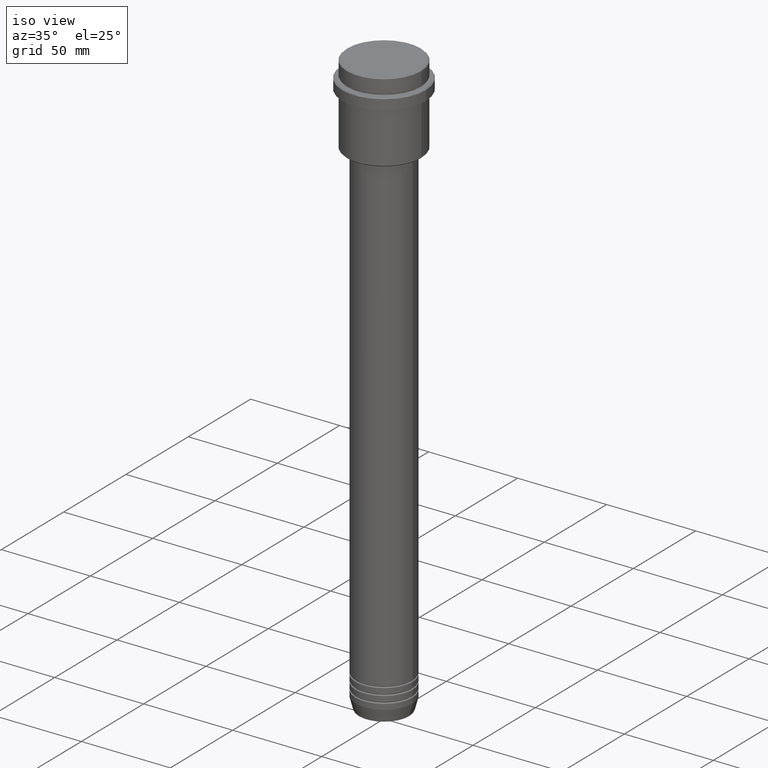
[diagram: clean part render]
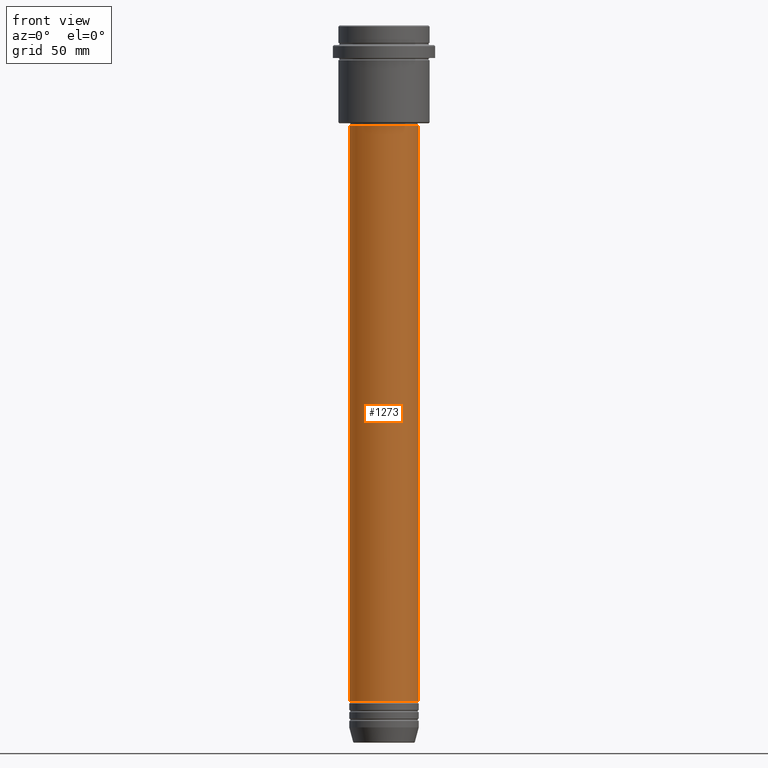
[diagram: tour spotlight — one face highlighted and labeled with its STEP entity id]
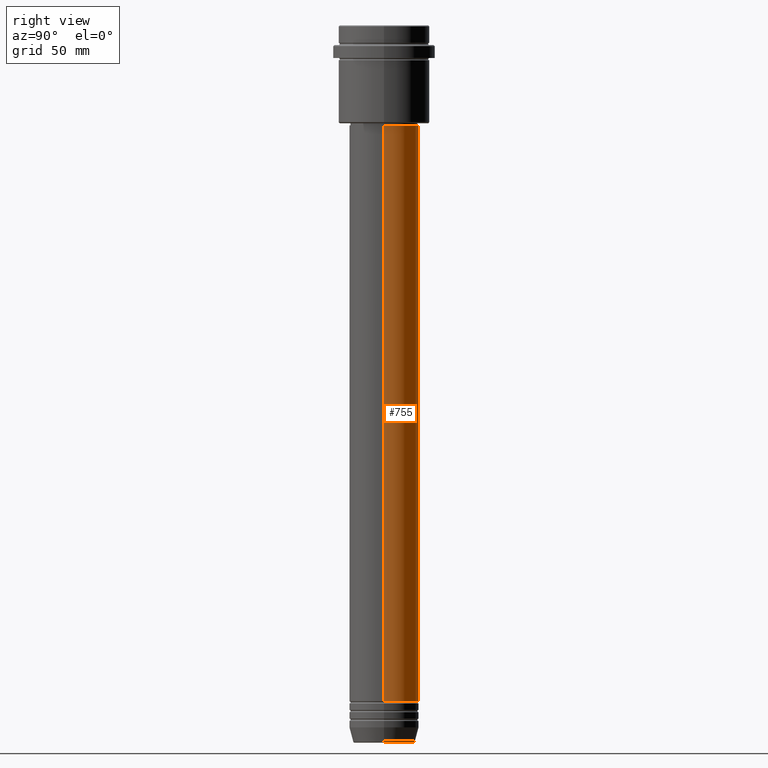
[diagram: tour spotlight — one face highlighted and labeled with its STEP entity id]
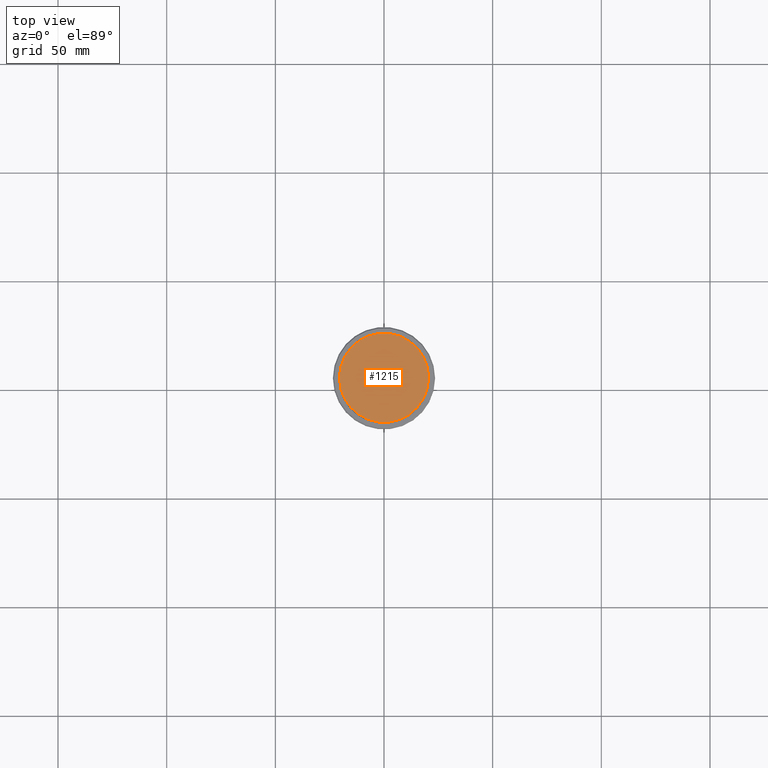
[diagram: tour spotlight — one face highlighted and labeled with its STEP entity id]
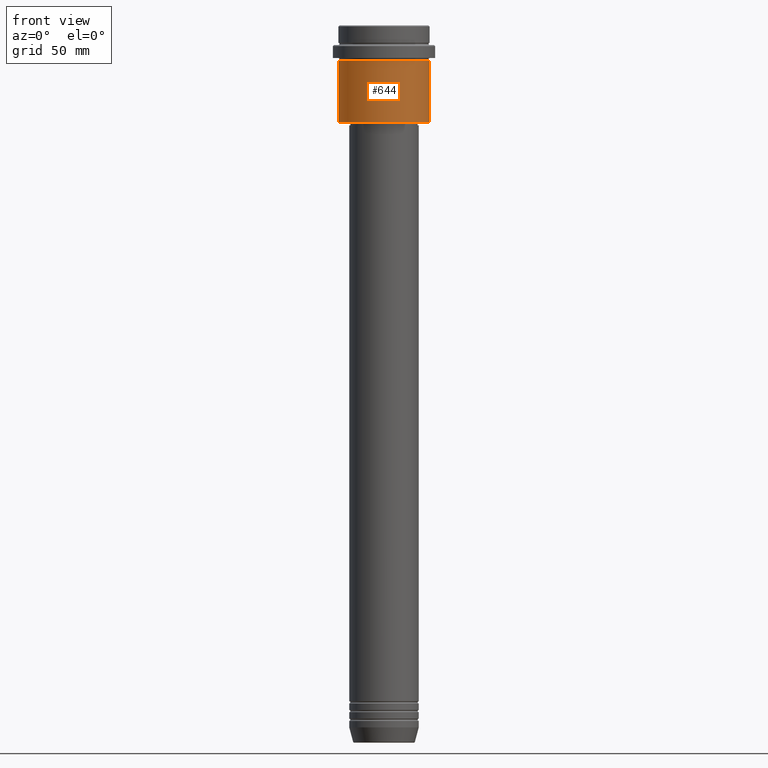
[diagram: tour spotlight — one face highlighted and labeled with its STEP entity id]
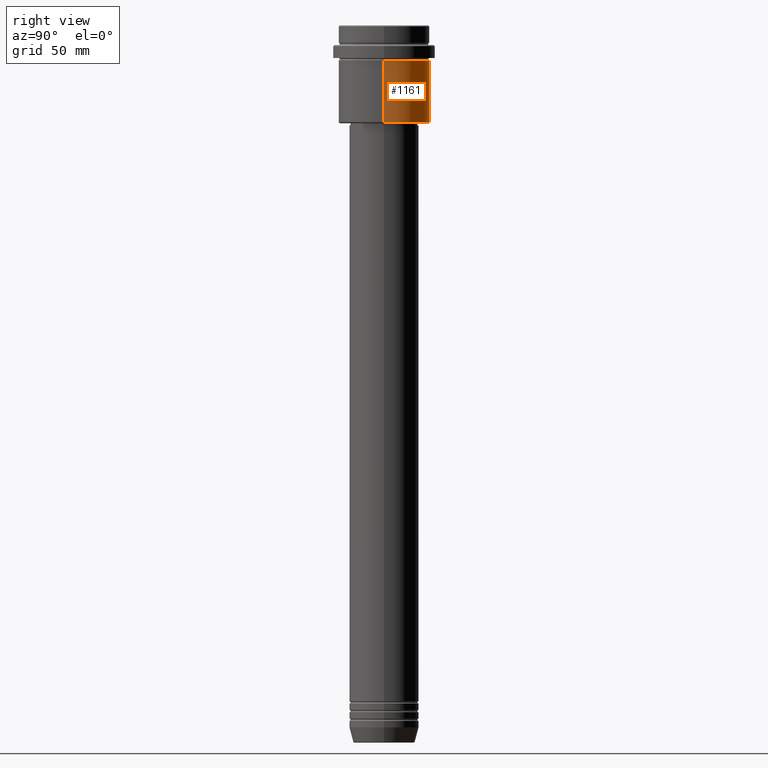
[diagram: tour spotlight — one face highlighted and labeled with its STEP entity id]
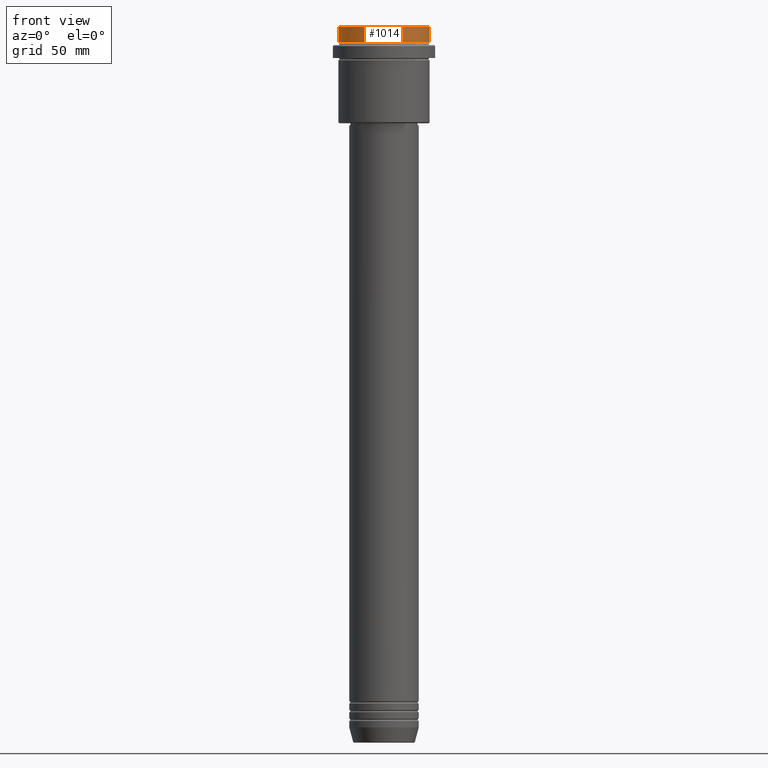
[diagram: tour spotlight — one face highlighted and labeled with its STEP entity id]
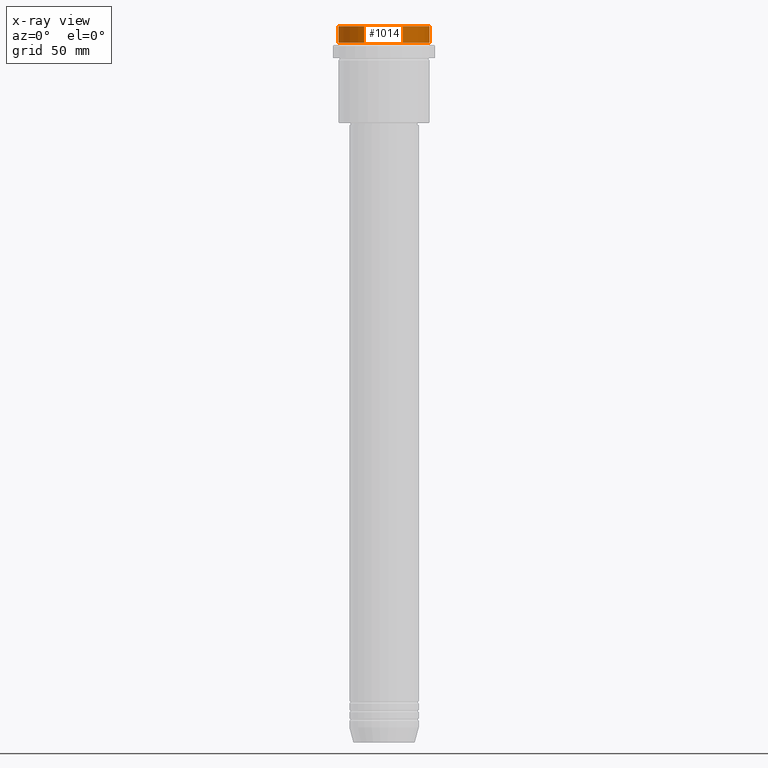
[diagram: x-ray of the same camera — body ghosted, this tour face saturated]
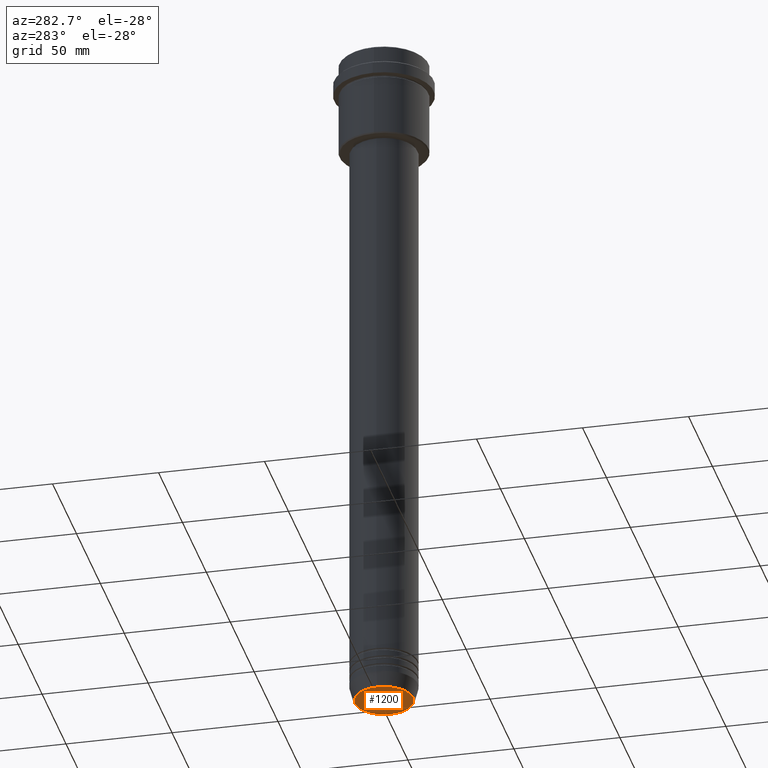
[diagram: tour spotlight — one face highlighted and labeled with its STEP entity id]
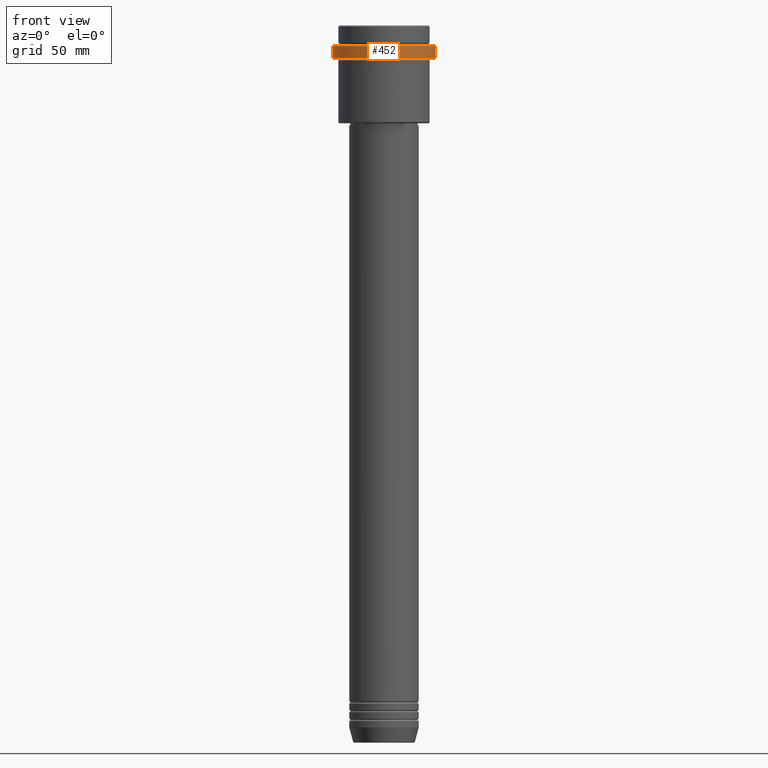
[diagram: tour spotlight — one face highlighted and labeled with its STEP entity id]
A machine part: a face-by-face anatomy tour. The part has 52 B-rep faces; the first image is the clean iso view, then the 8 largest visible faces are spotlighted one at a time (largest first), each with its STEP entity span.

Face 1 — front view, entity #1273. In plain terms, the highlighted cylindrical surface (edge-blend (fillet) strip) has radius 16 mm, axis along (-0, -0, 1).
Definition (entity closure, byte-faithful):
#71 = CARTESIAN_POINT ( 'NONE',  ( 0.000000000000000000, 0.000000000000000000, 0.000000000000000000 ) ) ;
#103 = CARTESIAN_POINT ( 'NONE',  ( -16.00000000000000000, 1.959434878635765131E-15, -310.9999999999998863 ) ) ;
#147 = AXIS2_PLACEMENT_3D ( 'NONE', #71, #1389, #843 ) ;
#206 = CARTESIAN_POINT ( 'NONE',  ( 16.00000000000000000, 0.000000000000000000, -310.9999999999998863 ) ) ;
#235 = EDGE_CURVE ( 'NONE', #426, #272, #1241, .T. ) ;
#272 = VERTEX_POINT ( 'NONE', #499 ) ;
#426 = VERTEX_POINT ( 'NONE', #206 ) ;
#499 = CARTESIAN_POINT ( 'NONE',  ( 16.00000000000000355, 0.000000000000000000, -46.00000000000001421 ) ) ;
#506 = VECTOR ( 'NONE', #1354, 1000.000000000000000 ) ;
#535 = CARTESIAN_POINT ( 'NONE',  ( -16.00000000000000000, 1.959434878635765131E-15, 0.000000000000000000 ) ) ;
#557 = EDGE_CURVE ( 'NONE', #1045, #272, #1343, .T. ) ;
#584 = CIRCLE ( 'NONE', #887, 16.00000000000000000 ) ;
#619 = FACE_OUTER_BOUND ( 'NONE', #1108, .T. ) ;
#802 = EDGE_CURVE ( 'NONE', #987, #1045, #1171, .T. ) ;
#812 = DIRECTION ( 'NONE',  ( -0.000000000000000000, -0.000000000000000000, 1.000000000000000000 ) ) ;
#843 = DIRECTION ( 'NONE',  ( 1.000000000000000000, 0.000000000000000000, 0.000000000000000000 ) ) ;
#864 = CARTESIAN_POINT ( 'NONE',  ( 0.000000000000000000, 0.000000000000000000, -46.00000000000001421 ) ) ;
#887 = AXIS2_PLACEMENT_3D ( 'NONE', #1047, #812, #1372 ) ;
#957 = CYLINDRICAL_SURFACE ( 'NONE', #147, 16.00000000000000000 ) ;
#987 = VERTEX_POINT ( 'NONE', #103 ) ;
#1022 = CARTESIAN_POINT ( 'NONE',  ( -16.00000000000000355, 1.959434878635765526E-15, -46.00000000000001421 ) ) ;
#1045 = VERTEX_POINT ( 'NONE', #1022 ) ;
#1047 = CARTESIAN_POINT ( 'NONE',  ( 0.000000000000000000, 0.000000000000000000, -310.9999999999998863 ) ) ;
#1091 = ORIENTED_EDGE ( 'NONE', *, *, #235, .T. ) ;
#1108 = EDGE_LOOP ( 'NONE', ( #1248, #1294, #1091, #1345 ) ) ;
#1129 = AXIS2_PLACEMENT_3D ( 'NONE', #864, #1186, #1301 ) ;
#1171 = LINE ( 'NONE', #535, #1347 ) ;
#1186 = DIRECTION ( 'NONE',  ( -0.000000000000000000, -0.000000000000000000, 1.000000000000000000 ) ) ;
#1214 = CARTESIAN_POINT ( 'NONE',  ( 16.00000000000000000, 0.000000000000000000, 0.000000000000000000 ) ) ;
#1241 = LINE ( 'NONE', #1214, #506 ) ;
#1248 = ORIENTED_EDGE ( 'NONE', *, *, #802, .F. ) ;
#1273 = ADVANCED_FACE ( 'NONE', ( #619 ), #957, .T. ) ;
#1294 = ORIENTED_EDGE ( 'NONE', *, *, #1320, .T. ) ;
#1301 = DIRECTION ( 'NONE',  ( 1.000000000000000000, 0.000000000000000000, 0.000000000000000000 ) ) ;
#1320 = EDGE_CURVE ( 'NONE', #987, #426, #584, .T. ) ;
#1343 = CIRCLE ( 'NONE', #1129, 16.00000000000000355 ) ;
#1345 = ORIENTED_EDGE ( 'NONE', *, *, #557, .F. ) ;
#1347 = VECTOR ( 'NONE', #1394, 1000.000000000000000 ) ;
#1354 = DIRECTION ( 'NONE',  ( -0.000000000000000000, -0.000000000000000000, 1.000000000000000000 ) ) ;
#1372 = DIRECTION ( 'NONE',  ( 1.000000000000000000, 0.000000000000000000, 0.000000000000000000 ) ) ;
#1389 = DIRECTION ( 'NONE',  ( -0.000000000000000000, -0.000000000000000000, 1.000000000000000000 ) ) ;
#1394 = DIRECTION ( 'NONE',  ( -0.000000000000000000, -0.000000000000000000, 1.000000000000000000 ) ) ;

Face 2 — right view, entity #755. In plain terms, the highlighted cylindrical surface (edge-blend (fillet) strip) has radius 16 mm, axis along (-0, -0, 1).
Definition (entity closure, byte-faithful):
#53 = DIRECTION ( 'NONE',  ( -0.000000000000000000, -0.000000000000000000, 1.000000000000000000 ) ) ;
#103 = CARTESIAN_POINT ( 'NONE',  ( -16.00000000000000000, 1.959434878635765131E-15, -310.9999999999998863 ) ) ;
#206 = CARTESIAN_POINT ( 'NONE',  ( 16.00000000000000000, 0.000000000000000000, -310.9999999999998863 ) ) ;
#209 = DIRECTION ( 'NONE',  ( -0.000000000000000000, -0.000000000000000000, 1.000000000000000000 ) ) ;
#235 = EDGE_CURVE ( 'NONE', #426, #272, #1241, .T. ) ;
#248 = EDGE_LOOP ( 'NONE', ( #1034, #1346, #546, #1310 ) ) ;
#260 = CIRCLE ( 'NONE', #487, 16.00000000000000000 ) ;
#272 = VERTEX_POINT ( 'NONE', #499 ) ;
#296 = CYLINDRICAL_SURFACE ( 'NONE', #820, 16.00000000000000000 ) ;
#301 = DIRECTION ( 'NONE',  ( 1.000000000000000000, 0.000000000000000000, 0.000000000000000000 ) ) ;
#366 = DIRECTION ( 'NONE',  ( 1.000000000000000000, 0.000000000000000000, 0.000000000000000000 ) ) ;
#426 = VERTEX_POINT ( 'NONE', #206 ) ;
#434 = CARTESIAN_POINT ( 'NONE',  ( 0.000000000000000000, 0.000000000000000000, -46.00000000000001421 ) ) ;
#485 = AXIS2_PLACEMENT_3D ( 'NONE', #434, #857, #1291 ) ;
#487 = AXIS2_PLACEMENT_3D ( 'NONE', #1247, #53, #366 ) ;
#499 = CARTESIAN_POINT ( 'NONE',  ( 16.00000000000000355, 0.000000000000000000, -46.00000000000001421 ) ) ;
#506 = VECTOR ( 'NONE', #1354, 1000.000000000000000 ) ;
#521 = EDGE_CURVE ( 'NONE', #272, #1045, #1103, .T. ) ;
#535 = CARTESIAN_POINT ( 'NONE',  ( -16.00000000000000000, 1.959434878635765131E-15, 0.000000000000000000 ) ) ;
#546 = ORIENTED_EDGE ( 'NONE', *, *, #521, .F. ) ;
#668 = EDGE_CURVE ( 'NONE', #426, #987, #260, .T. ) ;
#755 = ADVANCED_FACE ( 'NONE', ( #1251 ), #296, .T. ) ;
#802 = EDGE_CURVE ( 'NONE', #987, #1045, #1171, .T. ) ;
#820 = AXIS2_PLACEMENT_3D ( 'NONE', #1375, #209, #301 ) ;
#857 = DIRECTION ( 'NONE',  ( -0.000000000000000000, -0.000000000000000000, 1.000000000000000000 ) ) ;
#987 = VERTEX_POINT ( 'NONE', #103 ) ;
#1022 = CARTESIAN_POINT ( 'NONE',  ( -16.00000000000000355, 1.959434878635765526E-15, -46.00000000000001421 ) ) ;
#1034 = ORIENTED_EDGE ( 'NONE', *, *, #668, .T. ) ;
#1045 = VERTEX_POINT ( 'NONE', #1022 ) ;
#1103 = CIRCLE ( 'NONE', #485, 16.00000000000000355 ) ;
#1171 = LINE ( 'NONE', #535, #1347 ) ;
#1214 = CARTESIAN_POINT ( 'NONE',  ( 16.00000000000000000, 0.000000000000000000, 0.000000000000000000 ) ) ;
#1241 = LINE ( 'NONE', #1214, #506 ) ;
#1247 = CARTESIAN_POINT ( 'NONE',  ( 0.000000000000000000, 0.000000000000000000, -310.9999999999998863 ) ) ;
#1251 = FACE_OUTER_BOUND ( 'NONE', #248, .T. ) ;
#1291 = DIRECTION ( 'NONE',  ( 1.000000000000000000, 0.000000000000000000, 0.000000000000000000 ) ) ;
#1310 = ORIENTED_EDGE ( 'NONE', *, *, #235, .F. ) ;
#1346 = ORIENTED_EDGE ( 'NONE', *, *, #802, .T. ) ;
#1347 = VECTOR ( 'NONE', #1394, 1000.000000000000000 ) ;
#1354 = DIRECTION ( 'NONE',  ( -0.000000000000000000, -0.000000000000000000, 1.000000000000000000 ) ) ;
#1375 = CARTESIAN_POINT ( 'NONE',  ( 0.000000000000000000, 0.000000000000000000, 0.000000000000000000 ) ) ;
#1394 = DIRECTION ( 'NONE',  ( -0.000000000000000000, -0.000000000000000000, 1.000000000000000000 ) ) ;

Face 3 — top view, entity #1215. In plain terms, the highlighted planar face has unit normal (0, -0, 1).
Definition (entity closure, byte-faithful):
#72 = CIRCLE ( 'NONE', #954, 20.49999999999998934 ) ;
#112 = CARTESIAN_POINT ( 'NONE',  ( 20.49999999999998934, 2.541142108230757480E-15, 0.000000000000000000 ) ) ;
#132 = CARTESIAN_POINT ( 'NONE',  ( -20.49999999999998934, 0.000000000000000000, 0.000000000000000000 ) ) ;
#308 = DIRECTION ( 'NONE',  ( 1.000000000000000000, 0.000000000000000000, 0.000000000000000000 ) ) ;
#309 = AXIS2_PLACEMENT_3D ( 'NONE', #1386, #1259, #825 ) ;
#398 = FACE_OUTER_BOUND ( 'NONE', #1029, .T. ) ;
#561 = VERTEX_POINT ( 'NONE', #132 ) ;
#692 = EDGE_CURVE ( 'NONE', #561, #1352, #72, .T. ) ;
#764 = ORIENTED_EDGE ( 'NONE', *, *, #692, .T. ) ;
#817 = ORIENTED_EDGE ( 'NONE', *, *, #859, .T. ) ;
#825 = DIRECTION ( 'NONE',  ( 1.000000000000000000, 0.000000000000000000, 0.000000000000000000 ) ) ;
#859 = EDGE_CURVE ( 'NONE', #1352, #561, #908, .T. ) ;
#908 = CIRCLE ( 'NONE', #309, 20.49999999999998934 ) ;
#940 = PLANE ( 'NONE',  #1106 ) ;
#947 = DIRECTION ( 'NONE',  ( 0.000000000000000000, -0.000000000000000000, 1.000000000000000000 ) ) ;
#954 = AXIS2_PLACEMENT_3D ( 'NONE', #1116, #1001, #1030 ) ;
#1001 = DIRECTION ( 'NONE',  ( -0.000000000000000000, -0.000000000000000000, 1.000000000000000000 ) ) ;
#1029 = EDGE_LOOP ( 'NONE', ( #764, #817 ) ) ;
#1030 = DIRECTION ( 'NONE',  ( 1.000000000000000000, 0.000000000000000000, 0.000000000000000000 ) ) ;
#1106 = AXIS2_PLACEMENT_3D ( 'NONE', #1256, #947, #308 ) ;
#1116 = CARTESIAN_POINT ( 'NONE',  ( 0.000000000000000000, 0.000000000000000000, 0.000000000000000000 ) ) ;
#1215 = ADVANCED_FACE ( 'NONE', ( #398 ), #940, .T. ) ;
#1256 = CARTESIAN_POINT ( 'NONE',  ( 0.000000000000000000, 0.000000000000000000, 0.000000000000000000 ) ) ;
#1259 = DIRECTION ( 'NONE',  ( -0.000000000000000000, -0.000000000000000000, 1.000000000000000000 ) ) ;
#1352 = VERTEX_POINT ( 'NONE', #112 ) ;
#1386 = CARTESIAN_POINT ( 'NONE',  ( 0.000000000000000000, 0.000000000000000000, 0.000000000000000000 ) ) ;

Face 4 — front view, entity #644. In plain terms, the highlighted cylindrical surface (partial cylindrical patch) has radius 21 mm, axis along (-0, -0, 1).
Definition (entity closure, byte-faithful):
#50 = CIRCLE ( 'NONE', #397, 21.00000000000000000 ) ;
#76 = CARTESIAN_POINT ( 'NONE',  ( 0.000000000000000000, 0.000000000000000000, -44.50000000000001421 ) ) ;
#92 = CARTESIAN_POINT ( 'NONE',  ( 21.00000000000000000, 0.000000000000000000, -44.50000000000001421 ) ) ;
#164 = DIRECTION ( 'NONE',  ( 1.000000000000000000, 0.000000000000000000, 0.000000000000000000 ) ) ;
#173 = AXIS2_PLACEMENT_3D ( 'NONE', #213, #847, #647 ) ;
#197 = DIRECTION ( 'NONE',  ( -1.000000000000000000, 0.000000000000000000, 0.000000000000000000 ) ) ;
#202 = LINE ( 'NONE', #728, #442 ) ;
#213 = CARTESIAN_POINT ( 'NONE',  ( 0.000000000000000000, 0.000000000000000000, -16.00000000000000355 ) ) ;
#254 = ORIENTED_EDGE ( 'NONE', *, *, #874, .T. ) ;
#350 = VERTEX_POINT ( 'NONE', #738 ) ;
#390 = DIRECTION ( 'NONE',  ( -0.000000000000000000, -0.000000000000000000, 1.000000000000000000 ) ) ;
#397 = AXIS2_PLACEMENT_3D ( 'NONE', #76, #1163, #197 ) ;
#442 = VECTOR ( 'NONE', #1160, 1000.000000000000000 ) ;
#558 = DIRECTION ( 'NONE',  ( -0.000000000000000000, -0.000000000000000000, 1.000000000000000000 ) ) ;
#578 = EDGE_CURVE ( 'NONE', #1223, #1390, #780, .T. ) ;
#608 = CYLINDRICAL_SURFACE ( 'NONE', #777, 21.00000000000000000 ) ;
#644 = ADVANCED_FACE ( 'NONE', ( #1139 ), #608, .T. ) ;
#646 = VECTOR ( 'NONE', #558, 1000.000000000000000 ) ;
#647 = DIRECTION ( 'NONE',  ( 1.000000000000000000, 0.000000000000000000, 0.000000000000000000 ) ) ;
#660 = CARTESIAN_POINT ( 'NONE',  ( 21.00000000000000000, 0.000000000000000000, 0.000000000000000000 ) ) ;
#671 = VERTEX_POINT ( 'NONE', #698 ) ;
#698 = CARTESIAN_POINT ( 'NONE',  ( -21.00000000000000000, 2.571758278209441661E-15, -16.00000000000000355 ) ) ;
#716 = EDGE_LOOP ( 'NONE', ( #1229, #254, #734, #1099 ) ) ;
#728 = CARTESIAN_POINT ( 'NONE',  ( -21.00000000000000000, 2.571758278209441661E-15, 0.000000000000000000 ) ) ;
#734 = ORIENTED_EDGE ( 'NONE', *, *, #578, .T. ) ;
#738 = CARTESIAN_POINT ( 'NONE',  ( -21.00000000000000000, 2.571758278209441661E-15, -44.50000000000001421 ) ) ;
#777 = AXIS2_PLACEMENT_3D ( 'NONE', #804, #390, #164 ) ;
#780 = LINE ( 'NONE', #660, #646 ) ;
#781 = CIRCLE ( 'NONE', #173, 21.00000000000000000 ) ;
#804 = CARTESIAN_POINT ( 'NONE',  ( 0.000000000000000000, 0.000000000000000000, 0.000000000000000000 ) ) ;
#847 = DIRECTION ( 'NONE',  ( -0.000000000000000000, -0.000000000000000000, 1.000000000000000000 ) ) ;
#874 = EDGE_CURVE ( 'NONE', #350, #1223, #50, .T. ) ;
#974 = CARTESIAN_POINT ( 'NONE',  ( 21.00000000000000000, 0.000000000000000000, -16.00000000000000355 ) ) ;
#1099 = ORIENTED_EDGE ( 'NONE', *, *, #1412, .F. ) ;
#1139 = FACE_OUTER_BOUND ( 'NONE', #716, .T. ) ;
#1160 = DIRECTION ( 'NONE',  ( -0.000000000000000000, -0.000000000000000000, 1.000000000000000000 ) ) ;
#1163 = DIRECTION ( 'NONE',  ( -0.000000000000000000, -0.000000000000000000, 1.000000000000000000 ) ) ;
#1223 = VERTEX_POINT ( 'NONE', #92 ) ;
#1227 = EDGE_CURVE ( 'NONE', #350, #671, #202, .T. ) ;
#1229 = ORIENTED_EDGE ( 'NONE', *, *, #1227, .F. ) ;
#1390 = VERTEX_POINT ( 'NONE', #974 ) ;
#1412 = EDGE_CURVE ( 'NONE', #671, #1390, #781, .T. ) ;

Face 5 — right view, entity #1161. In plain terms, the highlighted cylindrical surface (partial cylindrical patch) has radius 21 mm, axis along (-0, -0, 1).
Definition (entity closure, byte-faithful):
#17 = DIRECTION ( 'NONE',  ( 1.000000000000000000, 0.000000000000000000, 0.000000000000000000 ) ) ;
#35 = DIRECTION ( 'NONE',  ( -0.000000000000000000, -0.000000000000000000, 1.000000000000000000 ) ) ;
#92 = CARTESIAN_POINT ( 'NONE',  ( 21.00000000000000000, 0.000000000000000000, -44.50000000000001421 ) ) ;
#148 = DIRECTION ( 'NONE',  ( 1.000000000000000000, 0.000000000000000000, 0.000000000000000000 ) ) ;
#168 = AXIS2_PLACEMENT_3D ( 'NONE', #759, #683, #17 ) ;
#202 = LINE ( 'NONE', #728, #442 ) ;
#211 = DIRECTION ( 'NONE',  ( -1.000000000000000000, 0.000000000000000000, 0.000000000000000000 ) ) ;
#214 = AXIS2_PLACEMENT_3D ( 'NONE', #639, #1168, #211 ) ;
#323 = CIRCLE ( 'NONE', #214, 21.00000000000000000 ) ;
#350 = VERTEX_POINT ( 'NONE', #738 ) ;
#392 = ORIENTED_EDGE ( 'NONE', *, *, #443, .T. ) ;
#430 = ORIENTED_EDGE ( 'NONE', *, *, #578, .F. ) ;
#442 = VECTOR ( 'NONE', #1160, 1000.000000000000000 ) ;
#443 = EDGE_CURVE ( 'NONE', #1223, #350, #323, .T. ) ;
#501 = EDGE_CURVE ( 'NONE', #1390, #671, #1290, .T. ) ;
#549 = EDGE_LOOP ( 'NONE', ( #392, #1084, #1133, #430 ) ) ;
#558 = DIRECTION ( 'NONE',  ( -0.000000000000000000, -0.000000000000000000, 1.000000000000000000 ) ) ;
#578 = EDGE_CURVE ( 'NONE', #1223, #1390, #780, .T. ) ;
#639 = CARTESIAN_POINT ( 'NONE',  ( 0.000000000000000000, 0.000000000000000000, -44.50000000000001421 ) ) ;
#646 = VECTOR ( 'NONE', #558, 1000.000000000000000 ) ;
#660 = CARTESIAN_POINT ( 'NONE',  ( 21.00000000000000000, 0.000000000000000000, 0.000000000000000000 ) ) ;
#671 = VERTEX_POINT ( 'NONE', #698 ) ;
#683 = DIRECTION ( 'NONE',  ( -0.000000000000000000, -0.000000000000000000, 1.000000000000000000 ) ) ;
#688 = CARTESIAN_POINT ( 'NONE',  ( 0.000000000000000000, 0.000000000000000000, 0.000000000000000000 ) ) ;
#698 = CARTESIAN_POINT ( 'NONE',  ( -21.00000000000000000, 2.571758278209441661E-15, -16.00000000000000355 ) ) ;
#728 = CARTESIAN_POINT ( 'NONE',  ( -21.00000000000000000, 2.571758278209441661E-15, 0.000000000000000000 ) ) ;
#738 = CARTESIAN_POINT ( 'NONE',  ( -21.00000000000000000, 2.571758278209441661E-15, -44.50000000000001421 ) ) ;
#759 = CARTESIAN_POINT ( 'NONE',  ( 0.000000000000000000, 0.000000000000000000, -16.00000000000000355 ) ) ;
#780 = LINE ( 'NONE', #660, #646 ) ;
#794 = FACE_OUTER_BOUND ( 'NONE', #549, .T. ) ;
#974 = CARTESIAN_POINT ( 'NONE',  ( 21.00000000000000000, 0.000000000000000000, -16.00000000000000355 ) ) ;
#1084 = ORIENTED_EDGE ( 'NONE', *, *, #1227, .T. ) ;
#1133 = ORIENTED_EDGE ( 'NONE', *, *, #501, .F. ) ;
#1160 = DIRECTION ( 'NONE',  ( -0.000000000000000000, -0.000000000000000000, 1.000000000000000000 ) ) ;
#1161 = ADVANCED_FACE ( 'NONE', ( #794 ), #1220, .T. ) ;
#1168 = DIRECTION ( 'NONE',  ( -0.000000000000000000, -0.000000000000000000, 1.000000000000000000 ) ) ;
#1220 = CYLINDRICAL_SURFACE ( 'NONE', #1376, 21.00000000000000000 ) ;
#1223 = VERTEX_POINT ( 'NONE', #92 ) ;
#1227 = EDGE_CURVE ( 'NONE', #350, #671, #202, .T. ) ;
#1290 = CIRCLE ( 'NONE', #168, 21.00000000000000000 ) ;
#1376 = AXIS2_PLACEMENT_3D ( 'NONE', #688, #35, #148 ) ;
#1390 = VERTEX_POINT ( 'NONE', #974 ) ;

Face 6 — front view, entity #1014. An x-ray twin of the same camera follows (body ghosted, this face saturated) — the face is partly hidden behind the body. In plain terms, the highlighted cylindrical surface (partial cylindrical patch) has radius 21 mm, axis along (-0, -0, 1).
Definition (entity closure, byte-faithful):
#15 = DIRECTION ( 'NONE',  ( -0.000000000000000000, -0.000000000000000000, 1.000000000000000000 ) ) ;
#37 = ORIENTED_EDGE ( 'NONE', *, *, #978, .F. ) ;
#66 = VERTEX_POINT ( 'NONE', #1209 ) ;
#73 = EDGE_CURVE ( 'NONE', #1205, #66, #1391, .T. ) ;
#114 = EDGE_CURVE ( 'NONE', #66, #1110, #1203, .T. ) ;
#245 = FACE_OUTER_BOUND ( 'NONE', #474, .T. ) ;
#252 = EDGE_CURVE ( 'NONE', #1110, #559, #687, .T. ) ;
#276 = CARTESIAN_POINT ( 'NONE',  ( 21.00000000000000000, 0.000000000000000000, -0.5000000000000386358 ) ) ;
#281 = VECTOR ( 'NONE', #762, 1000.000000000000000 ) ;
#378 = DIRECTION ( 'NONE',  ( 0.000000000000000000, 0.000000000000000000, -1.000000000000000000 ) ) ;
#474 = EDGE_LOOP ( 'NONE', ( #37, #960, #1353, #1234 ) ) ;
#495 = DIRECTION ( 'NONE',  ( 1.000000000000000000, 0.000000000000000000, 0.000000000000000000 ) ) ;
#559 = VERTEX_POINT ( 'NONE', #1296 ) ;
#588 = CARTESIAN_POINT ( 'NONE',  ( 0.000000000000000000, 0.000000000000000000, -0.5000000000000386358 ) ) ;
#676 = CARTESIAN_POINT ( 'NONE',  ( 0.000000000000000000, 0.000000000000000000, 0.000000000000000000 ) ) ;
#684 = DIRECTION ( 'NONE',  ( 1.000000000000000000, 0.000000000000000000, 0.000000000000000000 ) ) ;
#687 = CIRCLE ( 'NONE', #858, 21.00000000000000000 ) ;
#757 = LINE ( 'NONE', #1086, #999 ) ;
#762 = DIRECTION ( 'NONE',  ( -0.000000000000000000, -0.000000000000000000, 1.000000000000000000 ) ) ;
#858 = AXIS2_PLACEMENT_3D ( 'NONE', #588, #378, #495 ) ;
#861 = AXIS2_PLACEMENT_3D ( 'NONE', #676, #963, #1405 ) ;
#960 = ORIENTED_EDGE ( 'NONE', *, *, #73, .T. ) ;
#963 = DIRECTION ( 'NONE',  ( -0.000000000000000000, -0.000000000000000000, 1.000000000000000000 ) ) ;
#977 = CYLINDRICAL_SURFACE ( 'NONE', #861, 21.00000000000000000 ) ;
#978 = EDGE_CURVE ( 'NONE', #1205, #559, #757, .T. ) ;
#991 = AXIS2_PLACEMENT_3D ( 'NONE', #1101, #1324, #684 ) ;
#999 = VECTOR ( 'NONE', #15, 1000.000000000000000 ) ;
#1014 = ADVANCED_FACE ( 'NONE', ( #245 ), #977, .T. ) ;
#1051 = CARTESIAN_POINT ( 'NONE',  ( -21.00000000000000000, 2.571758278209441661E-15, -7.999999999999998224 ) ) ;
#1086 = CARTESIAN_POINT ( 'NONE',  ( -21.00000000000000000, 2.571758278209441661E-15, 0.000000000000000000 ) ) ;
#1101 = CARTESIAN_POINT ( 'NONE',  ( 0.000000000000000000, 0.000000000000000000, -7.999999999999998224 ) ) ;
#1110 = VERTEX_POINT ( 'NONE', #276 ) ;
#1203 = LINE ( 'NONE', #1415, #281 ) ;
#1205 = VERTEX_POINT ( 'NONE', #1051 ) ;
#1209 = CARTESIAN_POINT ( 'NONE',  ( 21.00000000000000000, 0.000000000000000000, -7.999999999999998224 ) ) ;
#1234 = ORIENTED_EDGE ( 'NONE', *, *, #252, .T. ) ;
#1296 = CARTESIAN_POINT ( 'NONE',  ( -21.00000000000000000, 2.571758278209441661E-15, -0.5000000000000386358 ) ) ;
#1324 = DIRECTION ( 'NONE',  ( -0.000000000000000000, -0.000000000000000000, 1.000000000000000000 ) ) ;
#1353 = ORIENTED_EDGE ( 'NONE', *, *, #114, .T. ) ;
#1391 = CIRCLE ( 'NONE', #991, 21.00000000000000000 ) ;
#1405 = DIRECTION ( 'NONE',  ( 1.000000000000000000, 0.000000000000000000, 0.000000000000000000 ) ) ;
#1415 = CARTESIAN_POINT ( 'NONE',  ( 21.00000000000000000, 0.000000000000000000, 0.000000000000000000 ) ) ;

Face 7 — auxiliary view, entity #1200. In plain terms, the highlighted planar face has unit normal (0, -0, 1).
Definition (entity closure, byte-faithful):
#82 = CARTESIAN_POINT ( 'NONE',  ( -13.74069215899265828, 1.712322416342415986E-15, -330.0000000000000000 ) ) ;
#143 = EDGE_CURVE ( 'NONE', #1317, #730, #1340, .T. ) ;
#201 = ORIENTED_EDGE ( 'NONE', *, *, #143, .T. ) ;
#249 = CARTESIAN_POINT ( 'NONE',  ( 0.000000000000000000, 0.000000000000000000, -330.0000000000000000 ) ) ;
#298 = CARTESIAN_POINT ( 'NONE',  ( 0.000000000000000000, 0.000000000000000000, -330.0000000000000000 ) ) ;
#321 = AXIS2_PLACEMENT_3D ( 'NONE', #249, #451, #1303 ) ;
#389 = EDGE_CURVE ( 'NONE', #730, #1317, #839, .T. ) ;
#408 = DIRECTION ( 'NONE',  ( 1.000000000000000000, 0.000000000000000000, 0.000000000000000000 ) ) ;
#451 = DIRECTION ( 'NONE',  ( 0.000000000000000000, 0.000000000000000000, -1.000000000000000000 ) ) ;
#518 = PLANE ( 'NONE',  #1318 ) ;
#524 = FACE_OUTER_BOUND ( 'NONE', #779, .T. ) ;
#713 = CARTESIAN_POINT ( 'NONE',  ( 0.000000000000000000, 0.000000000000000000, -330.0000000000000000 ) ) ;
#717 = ORIENTED_EDGE ( 'NONE', *, *, #389, .T. ) ;
#730 = VERTEX_POINT ( 'NONE', #836 ) ;
#779 = EDGE_LOOP ( 'NONE', ( #717, #201 ) ) ;
#795 = AXIS2_PLACEMENT_3D ( 'NONE', #298, #962, #408 ) ;
#836 = CARTESIAN_POINT ( 'NONE',  ( 13.74069215899265828, 0.000000000000000000, -330.0000000000000000 ) ) ;
#839 = CIRCLE ( 'NONE', #795, 13.74069215899265828 ) ;
#936 = DIRECTION ( 'NONE',  ( 0.000000000000000000, -0.000000000000000000, 1.000000000000000000 ) ) ;
#962 = DIRECTION ( 'NONE',  ( 0.000000000000000000, 0.000000000000000000, -1.000000000000000000 ) ) ;
#1144 = DIRECTION ( 'NONE',  ( 1.000000000000000000, 0.000000000000000000, 0.000000000000000000 ) ) ;
#1200 = ADVANCED_FACE ( 'NONE', ( #524 ), #518, .F. ) ;
#1303 = DIRECTION ( 'NONE',  ( 1.000000000000000000, 0.000000000000000000, 0.000000000000000000 ) ) ;
#1317 = VERTEX_POINT ( 'NONE', #82 ) ;
#1318 = AXIS2_PLACEMENT_3D ( 'NONE', #713, #936, #1144 ) ;
#1340 = CIRCLE ( 'NONE', #321, 13.74069215899265828 ) ;

Face 8 — front view, entity #452. In plain terms, the highlighted cylindrical surface (partial cylindrical patch) has radius 23.5 mm, axis along (-0, -0, 1).
Definition (entity closure, byte-faithful):
#64 = LINE ( 'NONE', #89, #1156 ) ;
#70 = AXIS2_PLACEMENT_3D ( 'NONE', #424, #1172, #625 ) ;
#89 = CARTESIAN_POINT ( 'NONE',  ( 23.50000000000000000, 0.000000000000000000, 0.000000000000000000 ) ) ;
#94 = VERTEX_POINT ( 'NONE', #346 ) ;
#98 = CARTESIAN_POINT ( 'NONE',  ( 0.000000000000000000, 0.000000000000000000, 0.000000000000000000 ) ) ;
#107 = VERTEX_POINT ( 'NONE', #656 ) ;
#133 = CARTESIAN_POINT ( 'NONE',  ( 0.000000000000000000, 0.000000000000000000, -15.00000000000000000 ) ) ;
#176 = EDGE_CURVE ( 'NONE', #94, #856, #704, .T. ) ;
#334 = EDGE_CURVE ( 'NONE', #1059, #107, #1217, .T. ) ;
#346 = CARTESIAN_POINT ( 'NONE',  ( -23.50000000000000711, 2.877919977996281109E-15, -15.00000000000000000 ) ) ;
#367 = AXIS2_PLACEMENT_3D ( 'NONE', #133, #800, #1117 ) ;
#374 = ORIENTED_EDGE ( 'NONE', *, *, #334, .T. ) ;
#377 = ORIENTED_EDGE ( 'NONE', *, *, #786, .T. ) ;
#382 = CARTESIAN_POINT ( 'NONE',  ( 23.50000000000000000, 0.000000000000000000, -9.500000000000000000 ) ) ;
#424 = CARTESIAN_POINT ( 'NONE',  ( 0.000000000000000000, 0.000000000000000000, -9.500000000000000000 ) ) ;
#452 = ADVANCED_FACE ( 'NONE', ( #643 ), #1062, .T. ) ;
#505 = ORIENTED_EDGE ( 'NONE', *, *, #176, .T. ) ;
#537 = DIRECTION ( 'NONE',  ( -0.000000000000000000, -0.000000000000000000, 1.000000000000000000 ) ) ;
#603 = VECTOR ( 'NONE', #961, 1000.000000000000000 ) ;
#625 = DIRECTION ( 'NONE',  ( 1.000000000000000000, 0.000000000000000000, 0.000000000000000000 ) ) ;
#643 = FACE_OUTER_BOUND ( 'NONE', #869, .T. ) ;
#656 = CARTESIAN_POINT ( 'NONE',  ( -23.50000000000000000, 2.877919977996280320E-15, -9.500000000000000000 ) ) ;
#704 = CIRCLE ( 'NONE', #367, 23.50000000000000355 ) ;
#731 = DIRECTION ( 'NONE',  ( -0.000000000000000000, -0.000000000000000000, 1.000000000000000000 ) ) ;
#786 = EDGE_CURVE ( 'NONE', #856, #1059, #64, .T. ) ;
#800 = DIRECTION ( 'NONE',  ( -0.000000000000000000, -0.000000000000000000, 1.000000000000000000 ) ) ;
#831 = LINE ( 'NONE', #1041, #603 ) ;
#842 = EDGE_CURVE ( 'NONE', #94, #107, #831, .T. ) ;
#856 = VERTEX_POINT ( 'NONE', #943 ) ;
#869 = EDGE_LOOP ( 'NONE', ( #1008, #505, #377, #374 ) ) ;
#943 = CARTESIAN_POINT ( 'NONE',  ( 23.50000000000000355, 0.000000000000000000, -15.00000000000000000 ) ) ;
#961 = DIRECTION ( 'NONE',  ( -0.000000000000000000, -0.000000000000000000, 1.000000000000000000 ) ) ;
#1008 = ORIENTED_EDGE ( 'NONE', *, *, #842, .F. ) ;
#1041 = CARTESIAN_POINT ( 'NONE',  ( -23.50000000000000000, 2.877919977996280320E-15, 0.000000000000000000 ) ) ;
#1059 = VERTEX_POINT ( 'NONE', #382 ) ;
#1062 = CYLINDRICAL_SURFACE ( 'NONE', #1195, 23.50000000000000000 ) ;
#1117 = DIRECTION ( 'NONE',  ( 1.000000000000000000, 0.000000000000000000, 0.000000000000000000 ) ) ;
#1156 = VECTOR ( 'NONE', #731, 1000.000000000000000 ) ;
#1172 = DIRECTION ( 'NONE',  ( 0.000000000000000000, 0.000000000000000000, -1.000000000000000000 ) ) ;
#1195 = AXIS2_PLACEMENT_3D ( 'NONE', #98, #537, #1401 ) ;
#1217 = CIRCLE ( 'NONE', #70, 23.50000000000000000 ) ;
#1401 = DIRECTION ( 'NONE',  ( 1.000000000000000000, 0.000000000000000000, 0.000000000000000000 ) ) ;